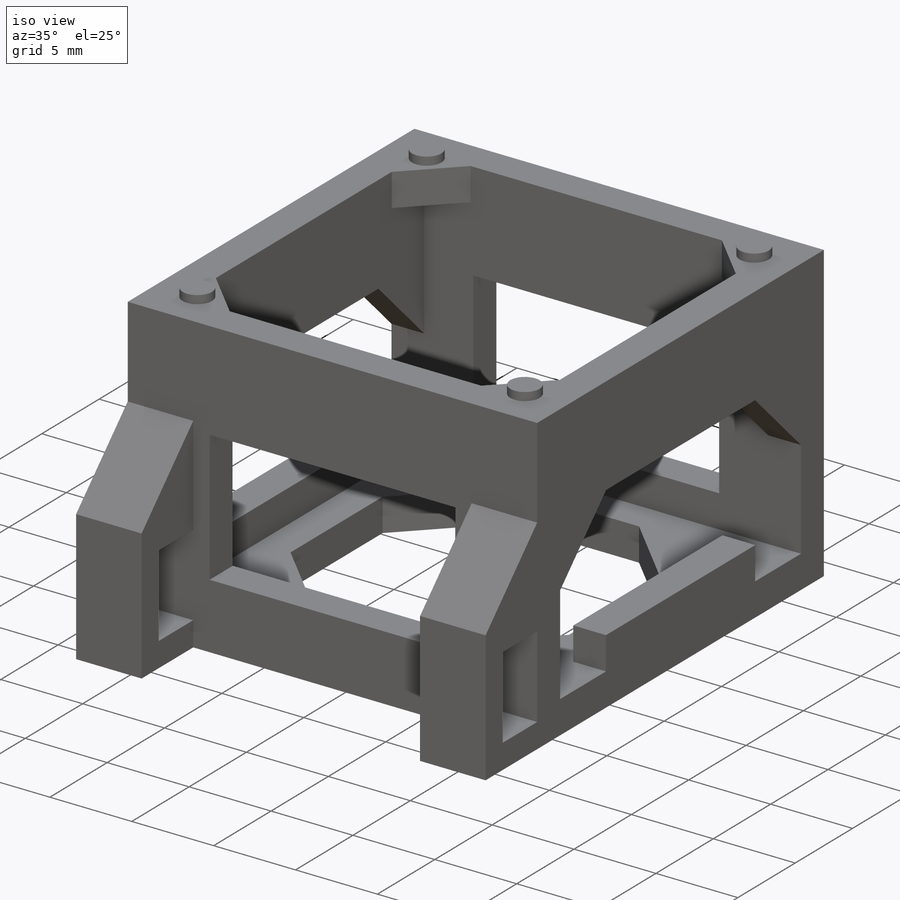
[diagram: iso view]
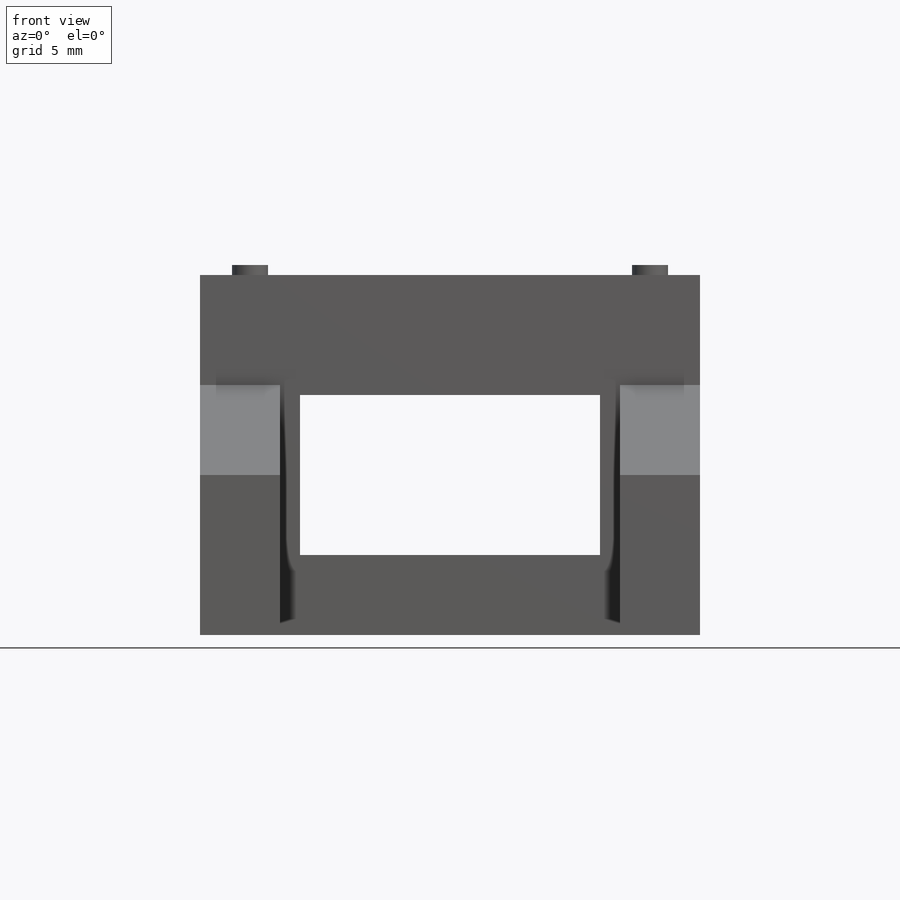
[diagram: front view]
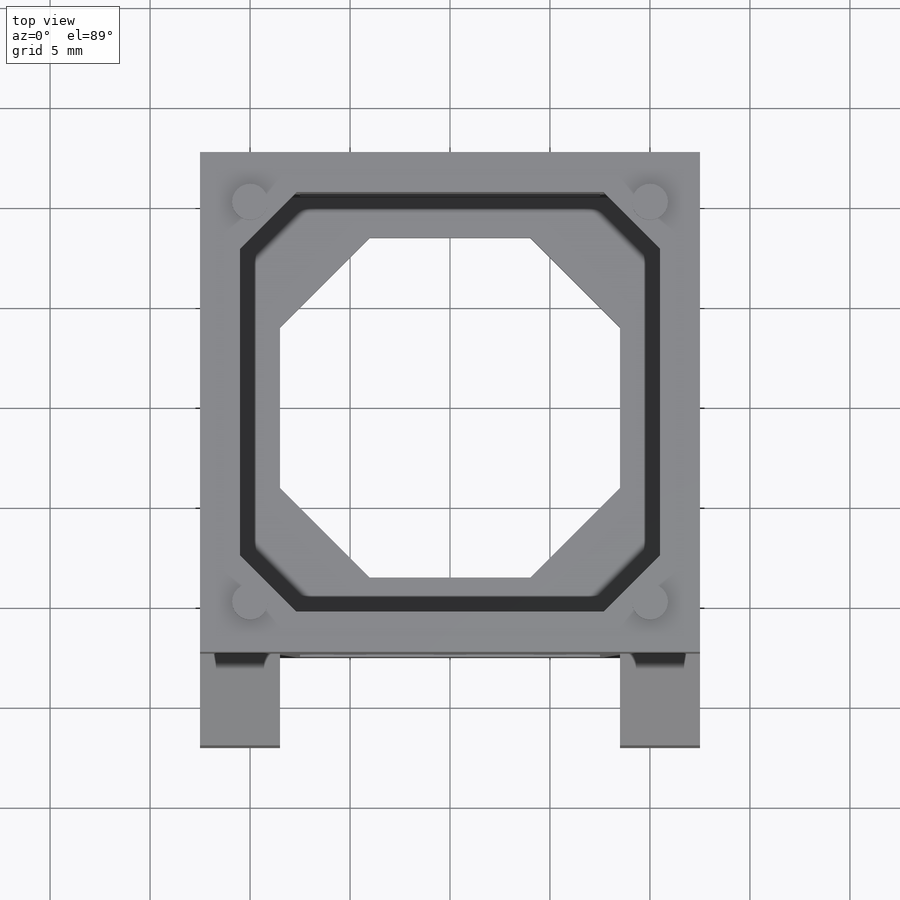
[diagram: top view]
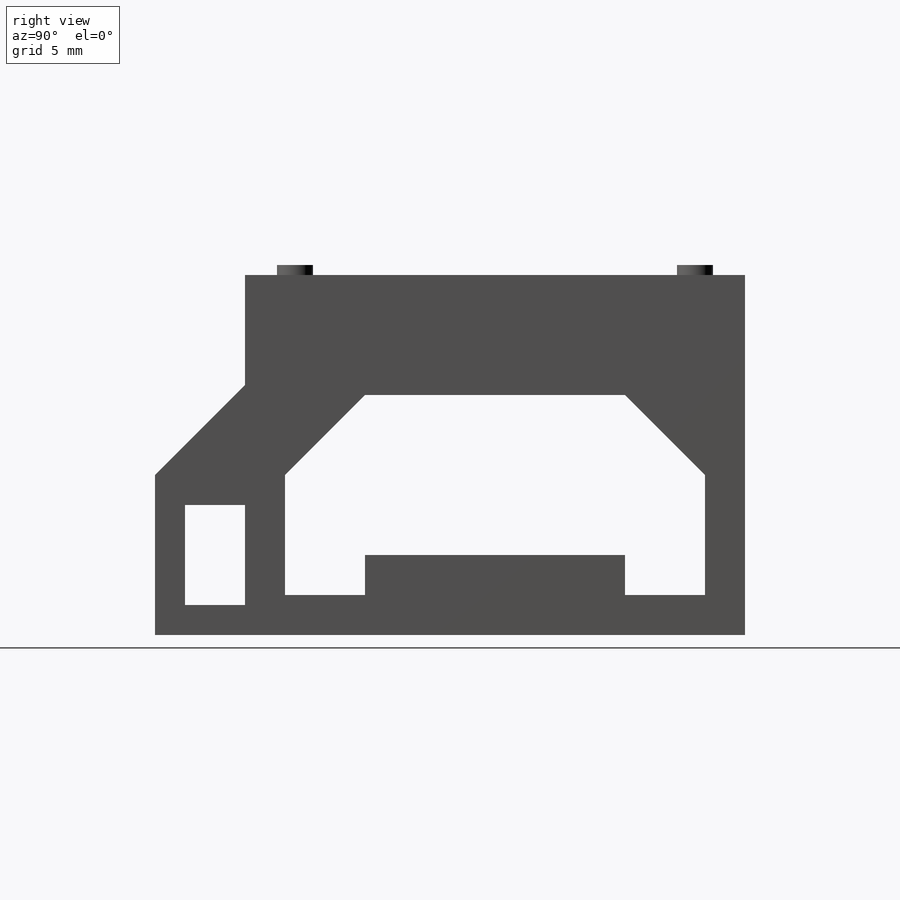
[diagram: right view]
SOLIDWORKS PART (.sldprt)
format: sldprt  version: not decoded by parser v0  size: 348,672 bytes
history: native  units: mm
features: sketch x9, cut_extrude x5, extrude x4, material x1, chamfer x1, mirror x1 (+11 scaffold rows collapsed)
feature tree (32):
  scaffold x11  (default folders/planes/origin — collapsed)
  material  "Material <not specified>"
  sketch  "Sketch1"  dims[D1=25.0mm D2=25.0mm]
  extrude  "Boss-Extrude1"  Depth=18mm
  sketch  "Sketch2"  dims[D1=21.0mm D2=21.0mm]
  cut_extrude  "Cut-Extrude1"  Depth=2mm
  sketch  "Sketch3"  dims[D1=2.0mm D2=6.0mm]
  cut_extrude  "Cut-Extrude2"  [1 undecoded]
  sketch  "Sketch7"  dims[D1=15.0mm D2=8.0mm D3=2.0mm]
  cut_extrude  "Cut-Extrude4"  [1 undecoded]
  sketch  "Sketch9"  dims[D1=2.0mm D2=~9.085786mm D3=10.5mm D4=0.0mm]
  extrude  "Boss-Extrude2"  Depth=2mm
  sketch  "Sketch11"  dims[c1.D1=2.0mm c1.D2=4.0mm c1.D3=~6.173138mm c2.D3=45.0deg c2.D4=6.0mm c2.D5=10.0mm]
  cut_extrude  "Cut-Extrude6"  [1 undecoded]
  sketch  "Sketch12"  dims[D1=1.8mm D2=20.0mm]
  extrude  "Boss-Extrude3"  Depth=0.5mm
  sketch  "Sketch13"  dims[D1=8.0mm D2=4.5mm]
  extrude  "Boss-Extrude4"  Depth=4mm
  sketch  "Sketch14"  dims[D1=5.0mm D2=3.0mm]
  cut_extrude  "Cut-Extrude7"  [1 undecoded]
  chamfer  "Chamfer1"  Distance=4.5mm Angle=45deg
  mirror  "Mirror2"
decode coverage: 15 of 20 modeling features carry decoded parameters
note: ~ marks probable driven/reference dimensions
note: 4 parameter values undecoded
summary: no parameter record found for 4 features
note: suppression state not decoded; provenance and decode notes live in map.json
